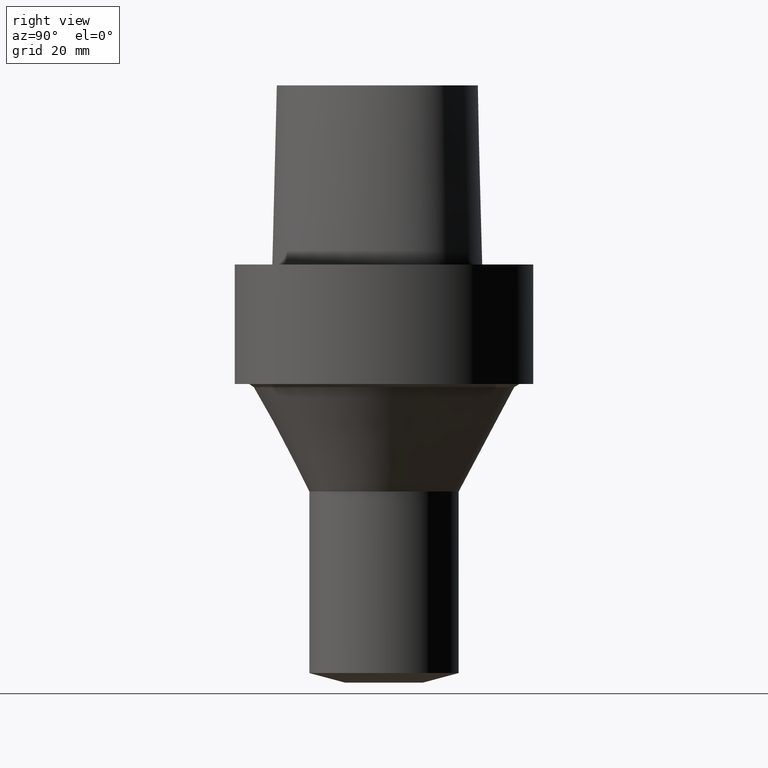
[diagram: clean part render]
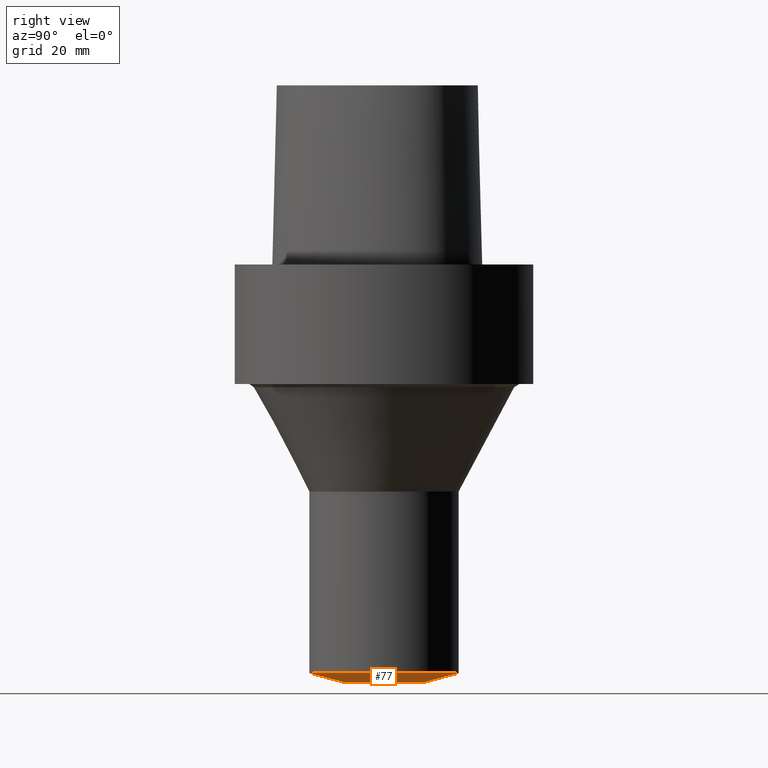
[diagram: same view with one face highlighted and labeled with its STEP entity id]
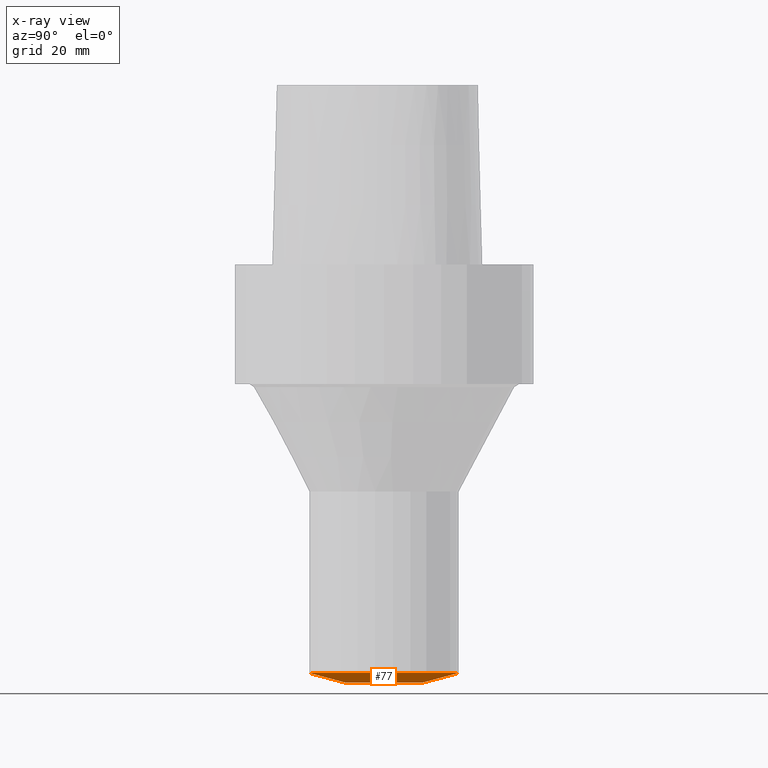
[diagram: x-ray of the same camera — body ghosted, the highlighted face saturated]
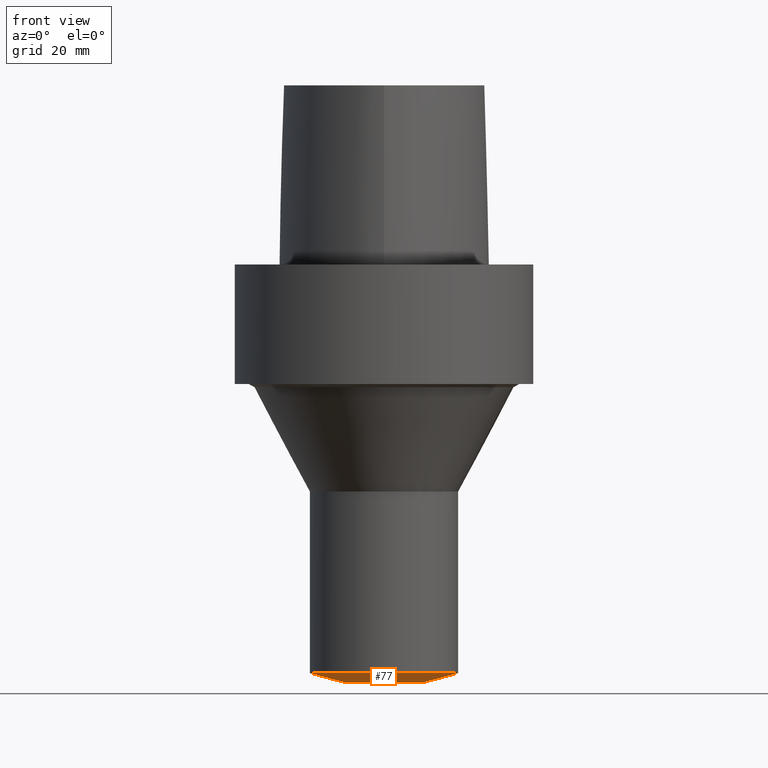
[diagram: same view with one face highlighted and labeled with its STEP entity id]
A machine part, right view. The second image highlights one B-rep face of the part: STEP entity #77.
The next image is the same camera in x-ray: the body ghosted, the highlighted face saturated — about 0% of this face is hidden behind the body in this view.
A second angle (front view) of the same face is appended — the face is thin or edge-on in the first view.
In plain terms, the highlighted conical surface has half-angle 75 deg.
Its self-contained STEP definition (entity closure, byte-faithful):
#77=ADVANCED_FACE('',(#90,#91),#92,.T.);
#90=FACE_BOUND('',#500,.T.);
#91=FACE_BOUND('',#501,.T.);
#92=CONICAL_SURFACE('',#502,9.50000000127817,1.30899693842297);
#500=EDGE_LOOP('',(#531));
#501=EDGE_LOOP('',(#532));
#502=AXIS2_PLACEMENT_3D('',#533,#534,#535);
#531=ORIENTED_EDGE('',*,*,#573,.F.);
#532=ORIENTED_EDGE('',*,*,#574,.T.);
#533=CARTESIAN_POINT('',(4.2370423287972E-015,8.4740846575944E-015,-69.1961524212074));
#534=DIRECTION('',(-6.12323399573676E-017,-1.22464679914735E-016,1.0));
#535=DIRECTION('',(-1.23259516440783E-032,1.0,1.22464679914735E-016));
#573=EDGE_CURVE('',#585,#585,#586,.T.);
#574=EDGE_CURVE('',#587,#587,#588,.T.);
#585=VERTEX_POINT('',#750);
#586=CIRCLE('',#751,6.50000000255634);
#587=VERTEX_POINT('',#752);
#588=CIRCLE('',#753,12.5);
#750=CARTESIAN_POINT('',(4.28626379701574E-015,6.50000000255635,-70.0));
#751=AXIS2_PLACEMENT_3D('',#764,#765,#766);
#752=CARTESIAN_POINT('',(4.18782086057867E-015,12.5,-68.3923048424148));
#753=AXIS2_PLACEMENT_3D('',#767,#768,#769);
#764=CARTESIAN_POINT('',(4.28626379701574E-015,8.57252759403147E-015,-70.0));
#765=DIRECTION('',(6.12323399573677E-017,1.22464679914735E-016,-1.0));
#766=DIRECTION('',(-1.23259516440783E-032,1.0,1.22464679914735E-016));
#767=CARTESIAN_POINT('',(4.18782086057867E-015,8.37564172115733E-015,-68.3923048424148));
#768=DIRECTION('',(6.12323399573677E-017,1.22464679914735E-016,-1.0));
#769=DIRECTION('',(-1.23259516440783E-032,1.0,1.22464679914735E-016));